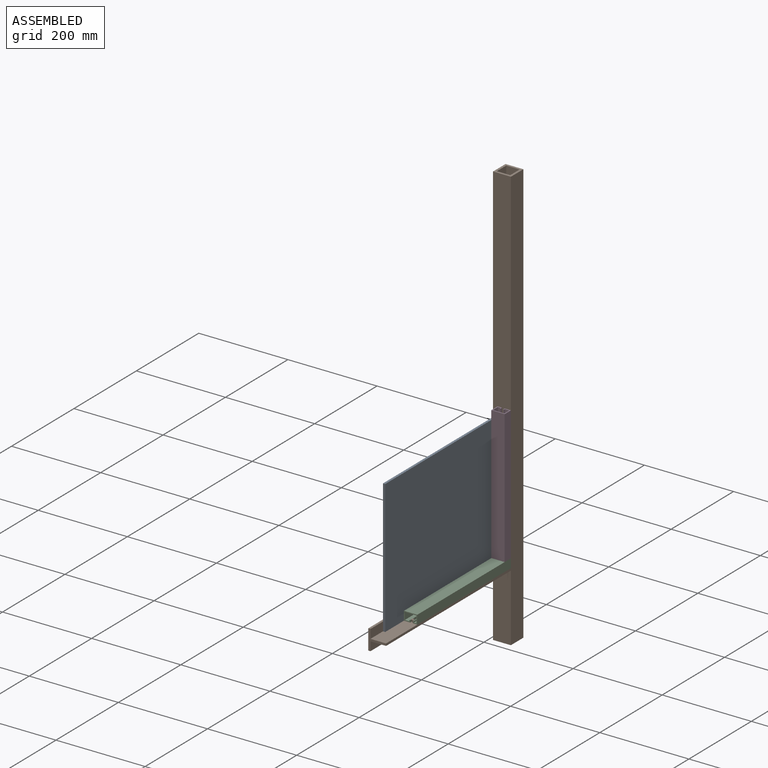
[diagram: assembled view]
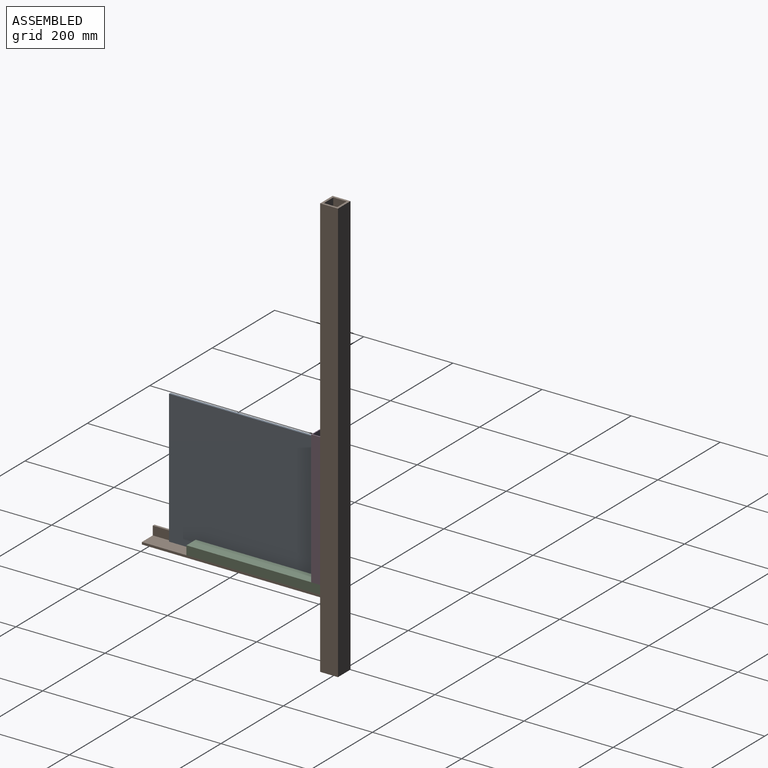
[diagram: assembled view, second angle]
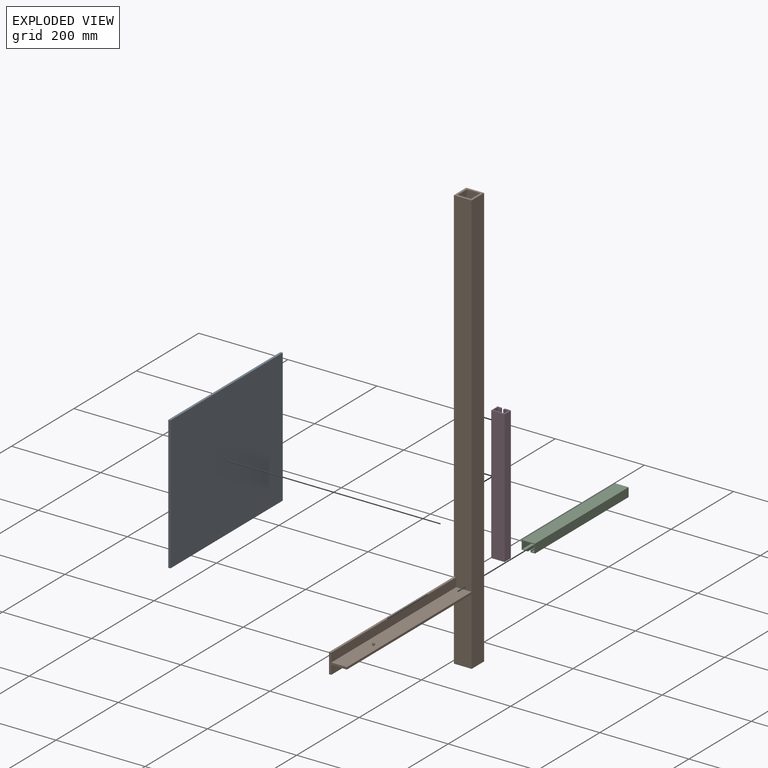
[diagram: exploded view]
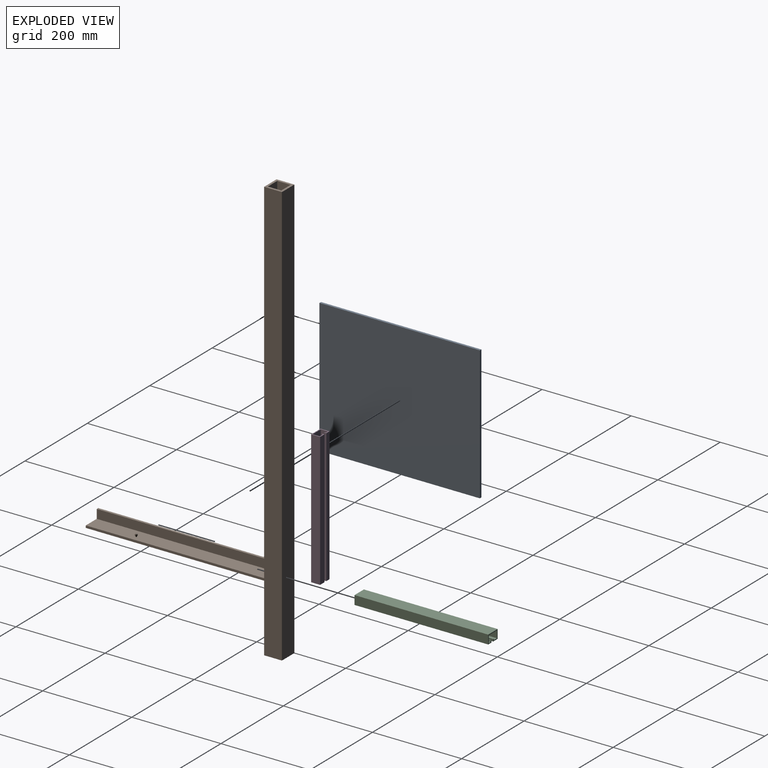
[diagram: exploded view, second angle]
ASSEMBLY  parts=4 mates=3
PART A: 6 faces, bbox 360x300x5 mm
  f0: plane 360x5mm, normal (0,1,0), area 1800mm2, adj f1,f3,f4,f5
  f1: plane 300x5mm, normal (-1,0,0), area 1500mm2, adj f0,f2,f4,f5
  f2: plane 360x5mm, normal (0,-1,0), area 1800mm2, adj f1,f3,f4,f5
  f3: plane 300x5mm, normal (1,0,0), area 1500mm2, adj f0,f2,f4,f5
  f4: plane 360x300mm, normal (0,0,1), area 108000mm2, adj f0,f1,f2,f3
  f5: plane 360x300mm, normal (0,0,-1), area 108000mm2, adj f0,f1,f2,f3
PART B: 37 faces, bbox 40.1x950x440 mm
  f0: plane 5.03x5.03mm, normal (0,1,0), area 15mm2, adj f14,f15,f16,f17,f18,f19,f20,f21
  f1: plane 400x5mm, normal (0,1,0), area 2000mm2, adj f2,f8,f9,f31
  f2: plane 400x45mm, normal (-1,0,0), area 18000mm2, adj f1,f3,f9,f31
  f3: plane 400x5mm, normal (0,-1,0), area 2000mm2, adj f2,f4,f9,f31
  f4: plane 400x20mm, normal (1,0,0), area 8000mm2, adj f3,f5,f9,f31
  f5: plane 400x35mm, normal (0,-1,0), area 14000mm2, adj f4,f6,f9,f10,f31
  f6: plane 400x5mm, normal (1,0,0), area 2000mm2, adj f5,f7,f9,f10
  f7: plane 400x35mm, normal (0,1,0), area 13992.9mm2, adj f6,f8,f9,f10,f11,f31
  f8: plane 400x20mm, normal (1,0,0), area 8000mm2, adj f1,f7,f9,f31
  f9: plane 45x40mm, normal (0,0,1), area 400mm2, adj f1,f2,f3,f4,f5,f6,f7,f8
  f10: plane 5x0.1mm, normal (0,0,-1), area 0.5mm2, adj f5,f6,f7,f30
  f11: cylinder r=1.5mm len=3mm, axis (0,-1,0), area 18.8mm2, adj f7,f13
  f12: cone r=2.5mm half-angle=7deg, axis (0,1,0), area 63.9mm2, adj f13,f26
  f13: plane 5x5mm, normal (0,-1,0), area 12.6mm2, adj f11,f12
  f14: plane 1.33x0.71mm, normal (0,0.26,-0.97), area 0.5mm2, adj f0,f15,f25
  f15: plane 1.9x1.33mm, normal (-0.97,0.26,0), area 2.1mm2, adj f0,f14,f16,f25
  f16: plane 1.9x1.33mm, normal (0,0.26,-0.97), area 2.1mm2, adj f0,f15,f17,f18
  f17: plane 1.33x0.71mm, normal (-0.97,0.26,0), area 0.5mm2, adj f0,f16,f18
  f18: plane 1.9x1.33mm, normal (0,0.26,0.97), area 2.1mm2, adj f0,f16,f17,f19
  f19: plane 1.9x1.33mm, normal (-0.97,0.26,0), area 2.1mm2, adj f0,f18,f20,f21
  f20: plane 1.33x0.71mm, normal (0,0.26,0.97), area 0.5mm2, adj f0,f19,f21
  f21: plane 1.9x1.33mm, normal (0.97,0.26,0), area 2.1mm2, adj f0,f19,f20,f22
  f22: plane 1.9x1.33mm, normal (0,0.26,0.97), area 2.1mm2, adj f0,f21,f23,f24
  f23: plane 1.33x0.71mm, normal (0.97,0.26,0), area 0.5mm2, adj f0,f22,f24
  f24: plane 1.9x1.33mm, normal (0,0.26,-0.97), area 2.1mm2, adj f0,f22,f23,f25
  f25: plane 1.9x1.33mm, normal (0.97,0.26,0), area 2.1mm2, adj f0,f14,f15,f24
  f26: cone r=2.52mm half-angle=41.5deg, axis (0,-1,0), area 11.4mm2, adj f0,f12
  f27: plane 950x30mm, normal (1,0,0), area 28500mm2, adj f28,f34,f35,f36
  f28: plane 950x30mm, normal (0,0,-1), area 28500mm2, adj f27,f29,f35,f36
  f29: plane 950x30mm, normal (-1,0,0), area 28500mm2, adj f28,f34,f35,f36
  f30: plane 950x40mm, normal (1,0,0), area 38000mm2, adj f10,f31,f33,f35,f36
  f31: plane 950x40mm, normal (0,0,1), area 37600.5mm2, adj f1,f2,f3,f4,f5,f7,f8,f30
  f32: plane 950x40mm, normal (-1,0,0), area 38000mm2, adj f31,f33,f35,f36
  f33: plane 950x40mm, normal (0,0,-1), area 38000mm2, adj f30,f32,f35,f36
  f34: plane 950x30mm, normal (0,0,1), area 28500mm2, adj f27,f29,f35,f36
  f35: plane 40x40mm, normal (0,-1,0), area 700mm2, adj f27,f28,f29,f30,f31,f32,f33,f34
  f36: plane 40x40mm, normal (0,1,0), area 700mm2, adj f27,f28,f29,f30,f31,f32,f33,f34
PART C: 18 faces, bbox 30x20x300 mm
  f0: plane 300x2.86mm, normal (-1,0,0), area 857.1mm2, adj f1,f15,f16,f17
  f1: plane 300x10mm, normal (0,1,0), area 3000mm2, adj f0,f2,f16,f17
  f2: plane 300x16mm, normal (1,0,0), area 4800mm2, adj f1,f3,f16,f17
  f3: plane 300x26mm, normal (0,-1,0), area 7800mm2, adj f2,f4,f16,f17
  f4: plane 300x16mm, normal (-1,0,0), area 4800mm2, adj f3,f5,f16,f17
  f5: plane 300x6mm, normal (0,1,0), area 1800mm2, adj f4,f6,f16,f17
  f6: plane 300x2.86mm, normal (1,0,0), area 857.1mm2, adj f5,f7,f16,f17
  f7: plane 300x2mm, normal (0,1,0), area 600mm2, adj f6,f8,f16,f17
  f8: plane 300x4.86mm, normal (-1,0,0), area 1457.1mm2, adj f7,f9,f16,f17
  f9: plane 300x10mm, normal (0,-1,0), area 3000mm2, adj f8,f10,f16,f17
  f10: plane 300x20mm, normal (1,0,0), area 6000mm2, adj f9,f11,f16,f17
  f11: plane 300x30mm, normal (0,1,0), area 9000mm2, adj f10,f12,f16,f17
  f12: plane 300x20mm, normal (-1,0,0), area 6000mm2, adj f11,f13,f16,f17
  f13: plane 300x14mm, normal (0,-1,0), area 4200mm2, adj f12,f14,f16,f17
  f14: plane 300x4.86mm, normal (1,0,0), area 1457.1mm2, adj f13,f15,f16,f17
  f15: plane 300x2mm, normal (0,1,0), area 600mm2, adj f0,f14,f16,f17
  f16: plane 30x20mm, normal (0,0,1), area 183.4mm2, adj f0,f1,f2,f3,f4,f5,f6,f7
  f17: plane 30x20mm, normal (0,0,-1), area 183.4mm2, adj f0,f1,f2,f3,f4,f5,f6,f7
PART D: same geometry as C
PLACE A rot(axis=(0.58,0.58,0.58),120deg) t=(-167.28,-0.47,212.63)mm
PLACE B rot(axis=(1,0,0),90deg) t=(-146.62,189.92,127.08)mm
PLACE C rot(axis=(1,0,0),90deg) t=(-130.06,189.92,146.55)mm
PLACE D rot(axis=(0,0,1),180deg) t=(-164.5,170.83,147.46)mm
MATE fastened C.f17 <-> B.f31  axis (0,1,0) through (-162.28,189.92,127.46)mm
MATE fastened D.f9 <-> B.f31  axis (0,1,0) through (-162.28,189.92,147.46)mm
MATE fastened A.f5 <-> B.f8  axis (-1,0,0) through (-167.28,-170.08,127.46)mm
